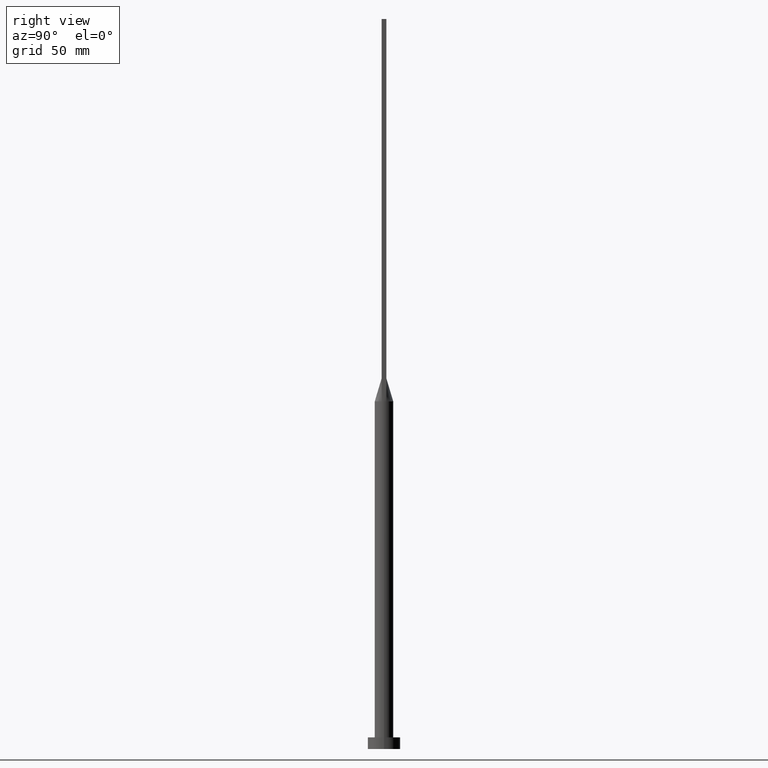
[diagram: clean part render]
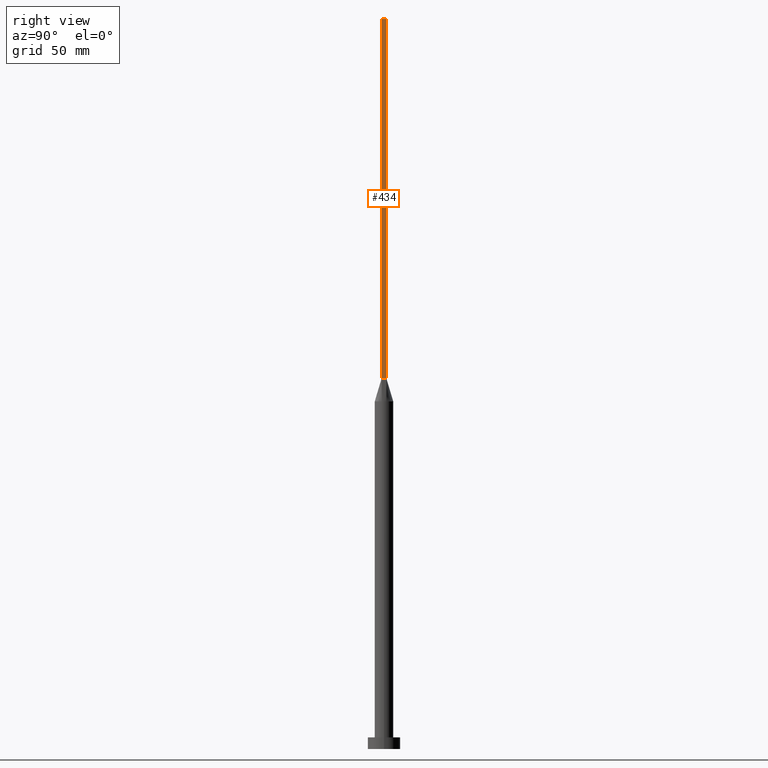
[diagram: same view with one face highlighted and labeled with its STEP entity id]
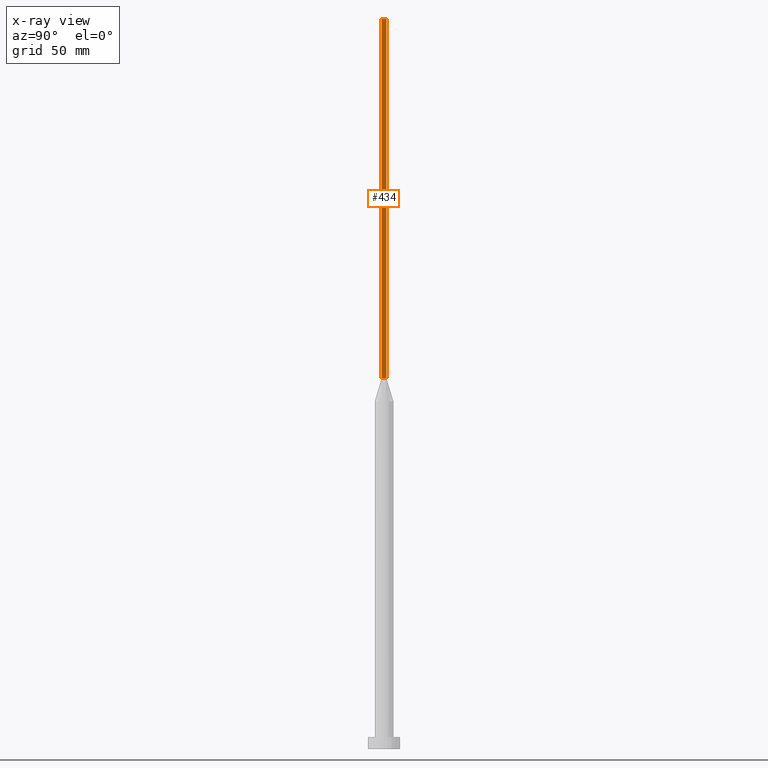
[diagram: x-ray of the same camera — body ghosted, the highlighted face saturated]
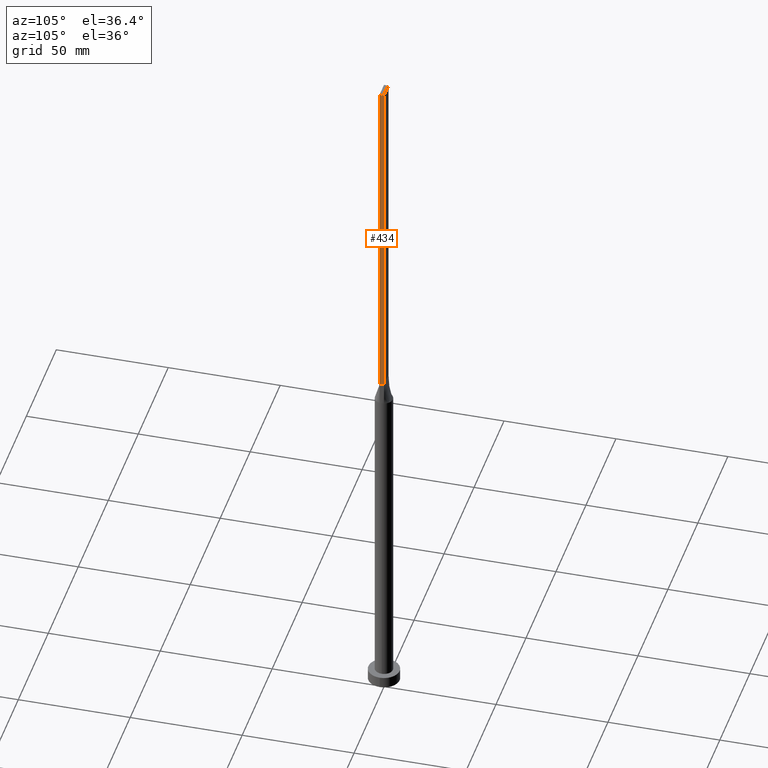
[diagram: same view with one face highlighted and labeled with its STEP entity id]
A machine part, right view. The second image highlights one B-rep face of the part: STEP entity #434.
The next image is the same camera in x-ray: the body ghosted, the highlighted face saturated — about 0% of this face is hidden behind the body in this view.
A second angle (auxiliary view) of the same face is appended — the face is thin or edge-on in the first view.
In plain terms, the highlighted planar face has unit normal (-1, 0, 0).
Its self-contained STEP definition (entity closure, byte-faithful):
#15 = VERTEX_POINT ( 'NONE', #23 ) ;
#18 = ORIENTED_EDGE ( 'NONE', *, *, #275, .F. ) ;
#23 = CARTESIAN_POINT ( 'NONE',  ( 3.750000000000000000, 1.000000000000000000, 160.0000000000000000 ) ) ;
#62 = CARTESIAN_POINT ( 'NONE',  ( 3.750000000000000000, -0.9999999999999997780, 315.0000000000000000 ) ) ;
#112 = EDGE_CURVE ( 'NONE', #371, #15, #476, .T. ) ;
#137 = DIRECTION ( 'NONE',  ( 0.000000000000000000, 1.000000000000000000, 0.000000000000000000 ) ) ;
#169 = DIRECTION ( 'NONE',  ( -0.000000000000000000, 1.000000000000000000, -0.000000000000000000 ) ) ;
#175 = LINE ( 'NONE', #357, #263 ) ;
#185 = ORIENTED_EDGE ( 'NONE', *, *, #112, .T. ) ;
#186 = FACE_OUTER_BOUND ( 'NONE', #448, .T. ) ;
#222 = CARTESIAN_POINT ( 'NONE',  ( 3.750000000000000000, 1.000000000000000000, 315.0000000000000000 ) ) ;
#225 = CARTESIAN_POINT ( 'NONE',  ( 3.750000000000000000, -0.9999999999999997780, 160.0000000000000000 ) ) ;
#229 = EDGE_CURVE ( 'NONE', #480, #371, #175, .T. ) ;
#234 = VECTOR ( 'NONE', #169, 1000.000000000000000 ) ;
#241 = LINE ( 'NONE', #422, #359 ) ;
#250 = CARTESIAN_POINT ( 'NONE',  ( 3.750000000000000000, 1.000000000000000000, 160.0000000000000000 ) ) ;
#263 = VECTOR ( 'NONE', #307, 1000.000000000000000 ) ;
#275 = EDGE_CURVE ( 'NONE', #525, #15, #475, .T. ) ;
#277 = ORIENTED_EDGE ( 'NONE', *, *, #229, .T. ) ;
#285 = VECTOR ( 'NONE', #573, 1000.000000000000000 ) ;
#307 = DIRECTION ( 'NONE',  ( -0.000000000000000000, -0.000000000000000000, -1.000000000000000000 ) ) ;
#357 = CARTESIAN_POINT ( 'NONE',  ( 3.750000000000000000, -0.9999999999999997780, 315.0000000000000000 ) ) ;
#359 = VECTOR ( 'NONE', #137, 1000.000000000000000 ) ;
#371 = VERTEX_POINT ( 'NONE', #225 ) ;
#404 = ORIENTED_EDGE ( 'NONE', *, *, #489, .F. ) ;
#422 = CARTESIAN_POINT ( 'NONE',  ( 3.750000000000000000, -0.9999999999999997780, 315.0000000000000000 ) ) ;
#434 = ADVANCED_FACE ( 'NONE', ( #186 ), #454, .F. ) ;
#448 = EDGE_LOOP ( 'NONE', ( #185, #18, #404, #277 ) ) ;
#454 = PLANE ( 'NONE',  #534 ) ;
#456 = DIRECTION ( 'NONE',  ( 0.000000000000000000, 0.000000000000000000, 1.000000000000000000 ) ) ;
#463 = DIRECTION ( 'NONE',  ( -1.000000000000000000, 0.000000000000000000, 0.000000000000000000 ) ) ;
#475 = LINE ( 'NONE', #479, #285 ) ;
#476 = LINE ( 'NONE', #250, #234 ) ;
#479 = CARTESIAN_POINT ( 'NONE',  ( 3.750000000000000000, 1.000000000000000000, 315.0000000000000000 ) ) ;
#480 = VERTEX_POINT ( 'NONE', #62 ) ;
#489 = EDGE_CURVE ( 'NONE', #480, #525, #241, .T. ) ;
#510 = CARTESIAN_POINT ( 'NONE',  ( 3.750000000000000000, -0.9999999999999997780, 315.0000000000000000 ) ) ;
#525 = VERTEX_POINT ( 'NONE', #222 ) ;
#534 = AXIS2_PLACEMENT_3D ( 'NONE', #510, #463, #456 ) ;
#573 = DIRECTION ( 'NONE',  ( -0.000000000000000000, -0.000000000000000000, -1.000000000000000000 ) ) ;